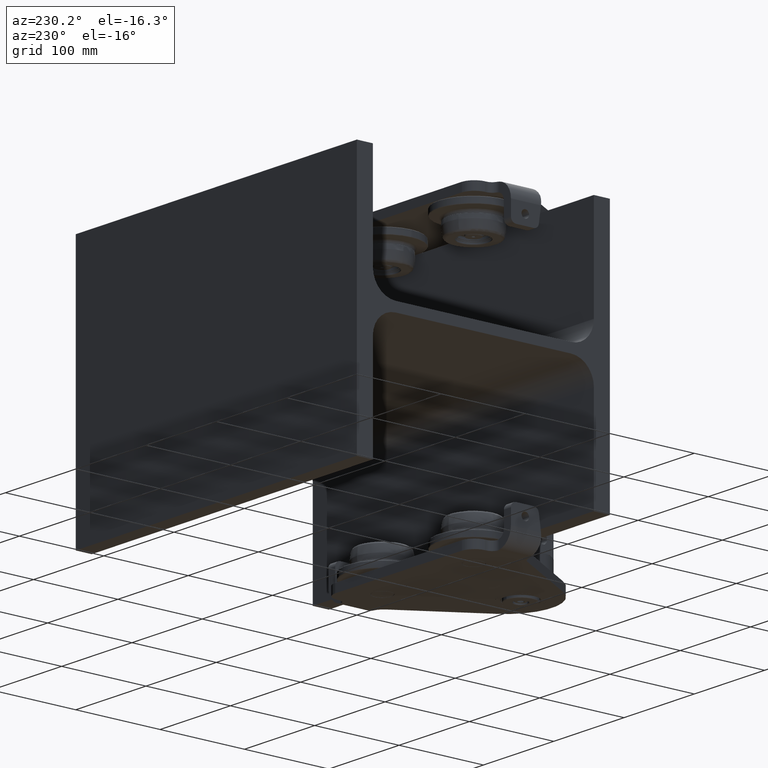
[diagram: clean part render]
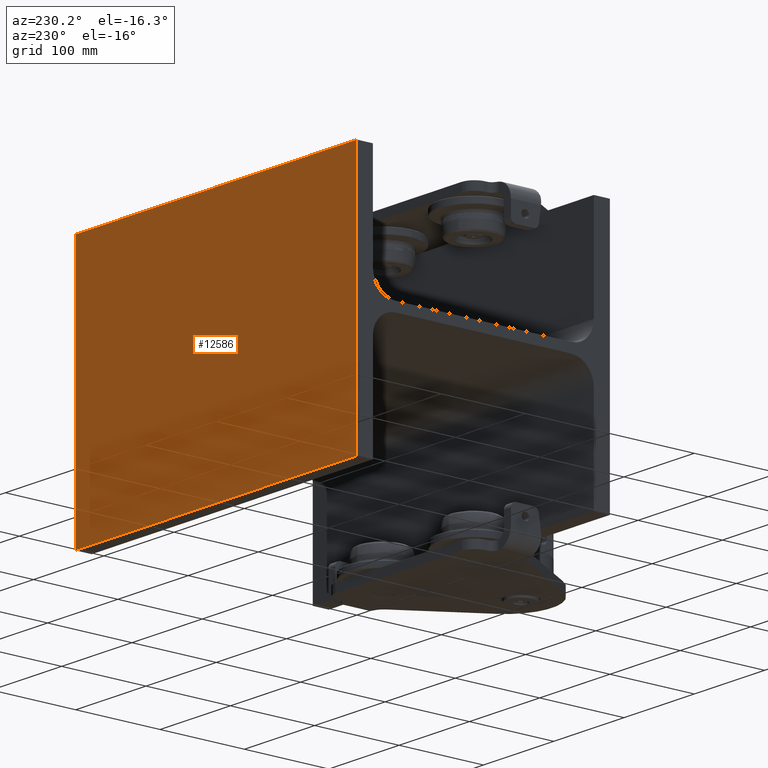
[diagram: same view with one face highlighted and labeled with its STEP entity id]
A machine part, auxiliary view. The second image highlights one B-rep face of the part: STEP entity #12586.
In plain terms, the highlighted planar face has unit normal (-0, 1, 0).
Its self-contained STEP definition (entity closure, byte-faithful):
#2772 = DIRECTION ( 'NONE',  ( -0.0000000000000000000, 1.000000000000000000, 0.0000000000000000000 ) ) ;
#4620 = EDGE_CURVE ( 'NONE', #50008, #48287, #8777, .T. ) ;
#4774 = VERTEX_POINT ( 'NONE', #30415 ) ;
#4845 = DIRECTION ( 'NONE',  ( 0.0000000000000000000, 0.0000000000000000000, 1.000000000000000000 ) ) ;
#4877 = AXIS2_PLACEMENT_3D ( 'NONE', #52988, #2772, #52435 ) ;
#6374 = VECTOR ( 'NONE', #4845, 1000.000000000000000 ) ;
#8286 = EDGE_CURVE ( 'NONE', #4774, #19472, #27998, .T. ) ;
#8361 = LINE ( 'NONE', #9939, #33703 ) ;
#8777 = LINE ( 'NONE', #34966, #51728 ) ;
#9939 = CARTESIAN_POINT ( 'NONE',  ( 200.0000000000000000, 150.0000000000000300, -149.9999999999999700 ) ) ;
#10078 = DIRECTION ( 'NONE',  ( 1.000000000000000000, 0.0000000000000000000, 0.0000000000000000000 ) ) ;
#12586 = ADVANCED_FACE ( 'NONE', ( #28704 ), #19564, .T. ) ;
#15826 = ORIENTED_EDGE ( 'NONE', *, *, #19773, .F. ) ;
#17307 = EDGE_CURVE ( 'NONE', #4774, #50008, #17505, .T. ) ;
#17505 = LINE ( 'NONE', #21579, #6374 ) ;
#18895 = ORIENTED_EDGE ( 'NONE', *, *, #17307, .T. ) ;
#19472 = VERTEX_POINT ( 'NONE', #32487 ) ;
#19564 = PLANE ( 'NONE',  #4877 ) ;
#19773 = EDGE_CURVE ( 'NONE', #19472, #48287, #8361, .T. ) ;
#21031 = EDGE_LOOP ( 'NONE', ( #15826, #43058, #18895, #27721 ) ) ;
#21579 = CARTESIAN_POINT ( 'NONE',  ( -200.0000000000000000, 150.0000000000000300, -149.9999999999999700 ) ) ;
#23498 = CARTESIAN_POINT ( 'NONE',  ( -200.0000000000000000, 150.0000000000000300, -149.9999999999999700 ) ) ;
#25794 = CARTESIAN_POINT ( 'NONE',  ( 200.0000000000000000, 150.0000000000000300, 150.0000000000000300 ) ) ;
#27721 = ORIENTED_EDGE ( 'NONE', *, *, #4620, .T. ) ;
#27998 = LINE ( 'NONE', #23498, #44848 ) ;
#28704 = FACE_OUTER_BOUND ( 'NONE', #21031, .T. ) ;
#30415 = CARTESIAN_POINT ( 'NONE',  ( -200.0000000000000000, 150.0000000000000300, -149.9999999999999700 ) ) ;
#31843 = DIRECTION ( 'NONE',  ( 1.000000000000000000, 0.0000000000000000000, 0.0000000000000000000 ) ) ;
#32487 = CARTESIAN_POINT ( 'NONE',  ( 200.0000000000000000, 150.0000000000000300, -149.9999999999999700 ) ) ;
#33703 = VECTOR ( 'NONE', #47918, 1000.000000000000000 ) ;
#34966 = CARTESIAN_POINT ( 'NONE',  ( -200.0000000000000000, 150.0000000000000300, 150.0000000000000300 ) ) ;
#43058 = ORIENTED_EDGE ( 'NONE', *, *, #8286, .F. ) ;
#44225 = CARTESIAN_POINT ( 'NONE',  ( -200.0000000000000000, 150.0000000000000300, 150.0000000000000300 ) ) ;
#44848 = VECTOR ( 'NONE', #31843, 1000.000000000000000 ) ;
#47918 = DIRECTION ( 'NONE',  ( 0.0000000000000000000, 0.0000000000000000000, 1.000000000000000000 ) ) ;
#48287 = VERTEX_POINT ( 'NONE', #25794 ) ;
#50008 = VERTEX_POINT ( 'NONE', #44225 ) ;
#51728 = VECTOR ( 'NONE', #10078, 1000.000000000000000 ) ;
#52435 = DIRECTION ( 'NONE',  ( 1.000000000000000000, 0.0000000000000000000, 0.0000000000000000000 ) ) ;
#52988 = CARTESIAN_POINT ( 'NONE',  ( -200.0000000000000000, 150.0000000000000300, -149.9999999999999700 ) ) ;